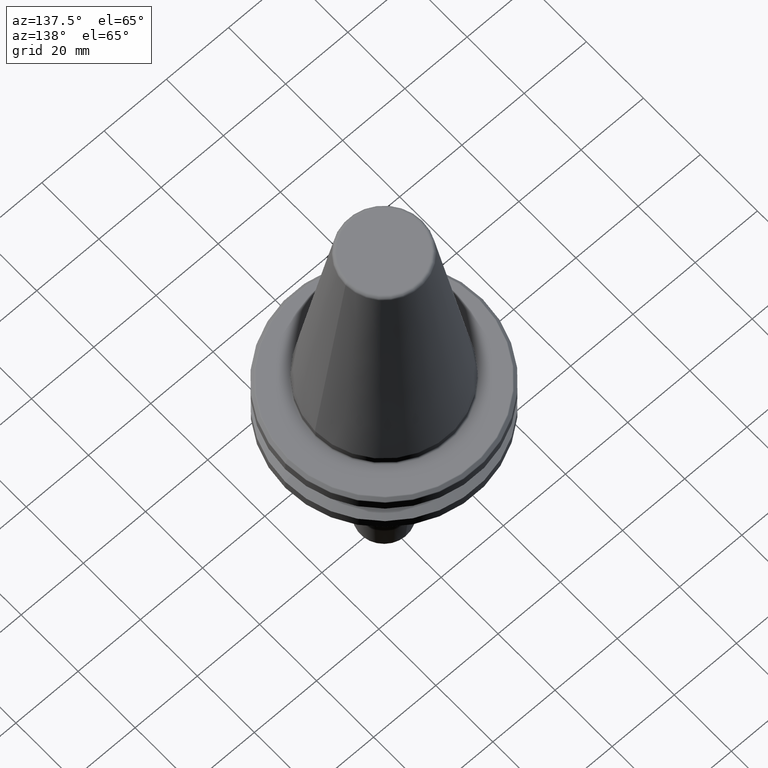
[diagram: clean part render]
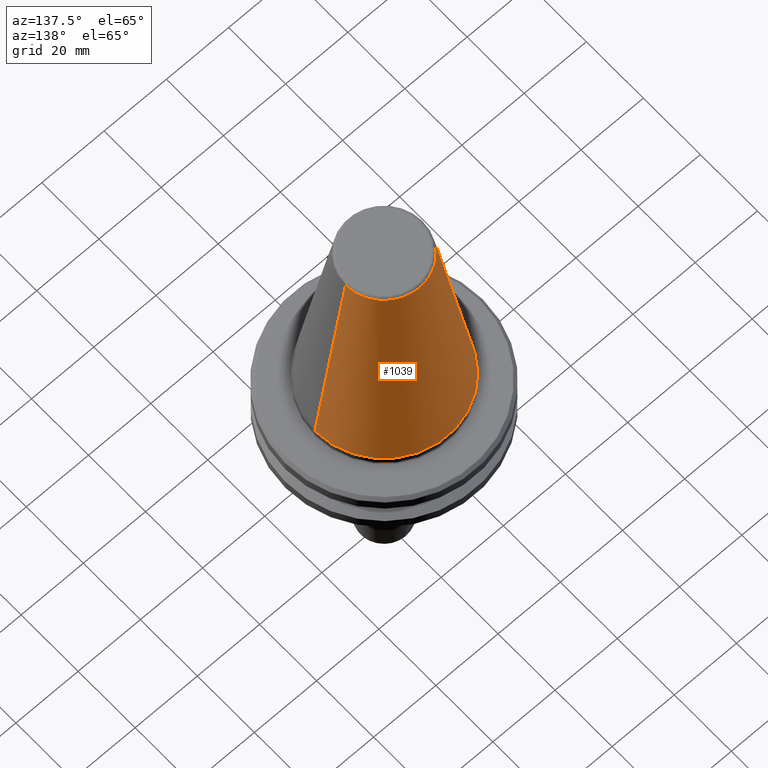
[diagram: same view with one face highlighted and labeled with its STEP entity id]
A machine part, auxiliary view. The second image highlights one B-rep face of the part: STEP entity #1039.
In plain terms, the highlighted conical surface has half-angle 8.297 deg.
Its self-contained STEP definition (entity closure, byte-faithful):
#8 = CARTESIAN_POINT ( 'NONE',  ( -12.37469537611110800, 0.0000000000000000000, 67.54430822726729400 ) ) ;
#17 = CARTESIAN_POINT ( 'NONE',  ( 22.22500000000000500, 0.0000000000000000000, 0.0000000000000000000 ) ) ;
#40 = DIRECTION ( 'NONE',  ( 1.000000000000000000, 0.0000000000000000000, 0.0000000000000000000 ) ) ;
#102 = VECTOR ( 'NONE', #1012, 1000.000000000000000 ) ;
#103 = CARTESIAN_POINT ( 'NONE',  ( 12.37469537611110800, 2.118620309691397700E-015, 67.54430822726729400 ) ) ;
#105 = CONICAL_SURFACE ( 'NONE', #801, 12.37469537611110800, 0.1448138465474191100 ) ;
#147 = CARTESIAN_POINT ( 'NONE',  ( 0.0000000000000000000, 0.0000000000000000000, 0.0000000000000000000 ) ) ;
#164 = DIRECTION ( 'NONE',  ( -1.000000000000000000, 0.0000000000000000000, 0.0000000000000000000 ) ) ;
#243 = CARTESIAN_POINT ( 'NONE',  ( -12.37469537611110800, 0.0000000000000000000, 67.54430822726729400 ) ) ;
#300 = CIRCLE ( 'NONE', #935, 12.37469537611110800 ) ;
#347 = DIRECTION ( 'NONE',  ( 1.000000000000000000, 0.0000000000000000000, 0.0000000000000000000 ) ) ;
#372 = CIRCLE ( 'NONE', #1016, 22.22500000000000500 ) ;
#452 = EDGE_CURVE ( 'NONE', #466, #1162, #1050, .T. ) ;
#466 = VERTEX_POINT ( 'NONE', #103 ) ;
#469 = VERTEX_POINT ( 'NONE', #8 ) ;
#487 = VERTEX_POINT ( 'NONE', #989 ) ;
#491 = VECTOR ( 'NONE', #981, 1000.000000000000000 ) ;
#495 = ORIENTED_EDGE ( 'NONE', *, *, #555, .T. ) ;
#510 = CARTESIAN_POINT ( 'NONE',  ( 12.37469537611110800, 1.515463108277802100E-015, 67.54430822726729400 ) ) ;
#522 = ORIENTED_EDGE ( 'NONE', *, *, #631, .F. ) ;
#532 = DIRECTION ( 'NONE',  ( -0.0000000000000000000, -0.0000000000000000000, 1.000000000000000000 ) ) ;
#546 = EDGE_CURVE ( 'NONE', #469, #487, #621, .T. ) ;
#555 = EDGE_CURVE ( 'NONE', #1162, #487, #372, .T. ) ;
#621 = LINE ( 'NONE', #243, #102 ) ;
#631 = EDGE_CURVE ( 'NONE', #466, #469, #300, .T. ) ;
#635 = ORIENTED_EDGE ( 'NONE', *, *, #546, .F. ) ;
#637 = DIRECTION ( 'NONE',  ( -0.0000000000000000000, -0.0000000000000000000, 1.000000000000000000 ) ) ;
#650 = FACE_OUTER_BOUND ( 'NONE', #900, .T. ) ;
#801 = AXIS2_PLACEMENT_3D ( 'NONE', #832, #931, #164 ) ;
#832 = CARTESIAN_POINT ( 'NONE',  ( 0.0000000000000000000, 0.0000000000000000000, 67.54430822726729400 ) ) ;
#895 = ORIENTED_EDGE ( 'NONE', *, *, #452, .T. ) ;
#900 = EDGE_LOOP ( 'NONE', ( #522, #895, #495, #635 ) ) ;
#910 = CARTESIAN_POINT ( 'NONE',  ( 0.0000000000000000000, 0.0000000000000000000, 67.54430822726729400 ) ) ;
#931 = DIRECTION ( 'NONE',  ( 0.0000000000000000000, 0.0000000000000000000, -1.000000000000000000 ) ) ;
#935 = AXIS2_PLACEMENT_3D ( 'NONE', #910, #532, #347 ) ;
#981 = DIRECTION ( 'NONE',  ( 0.1443082272673071000, 1.767266086135364600E-017, -0.9895327864921743500 ) ) ;
#989 = CARTESIAN_POINT ( 'NONE',  ( -22.22500000000000500, 2.721777511104993200E-015, 0.0000000000000000000 ) ) ;
#1012 = DIRECTION ( 'NONE',  ( -0.1443082272673071000, 0.0000000000000000000, -0.9895327864921743500 ) ) ;
#1016 = AXIS2_PLACEMENT_3D ( 'NONE', #147, #637, #40 ) ;
#1039 = ADVANCED_FACE ( 'NONE', ( #650 ), #105, .T. ) ;
#1050 = LINE ( 'NONE', #510, #491 ) ;
#1162 = VERTEX_POINT ( 'NONE', #17 ) ;